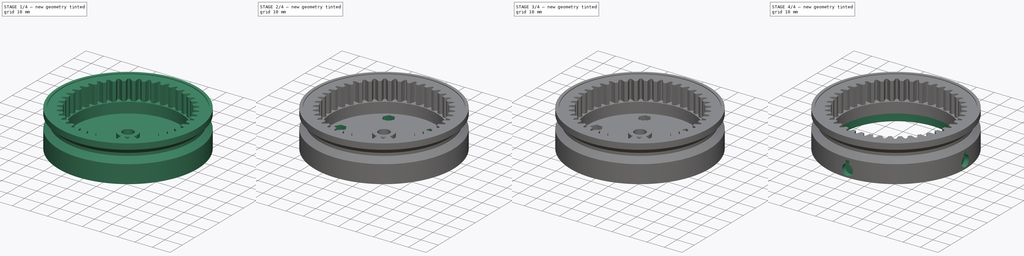
[diagram: build sequence overview — one tinted view per stage of 4, left to right]
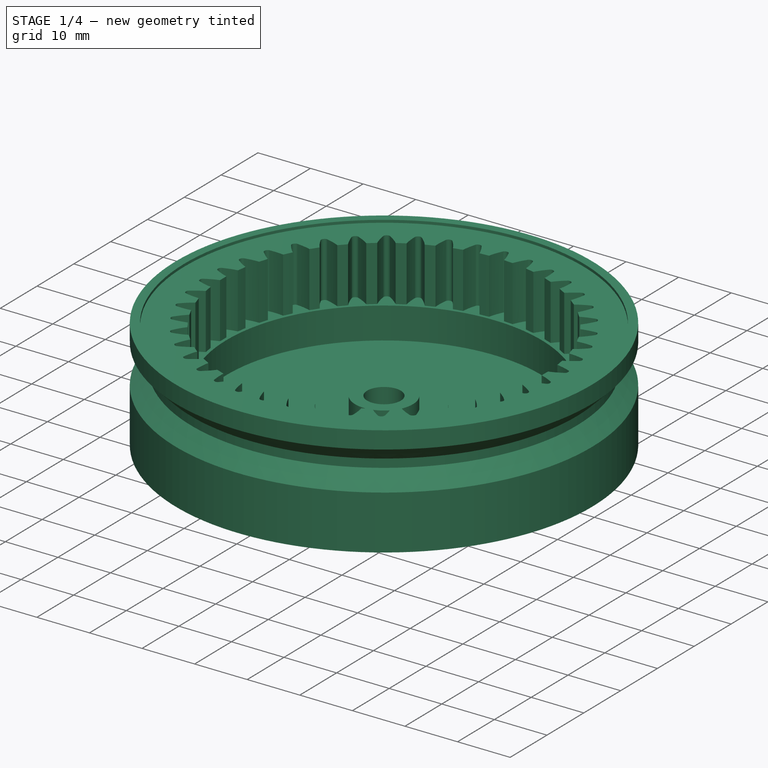
[diagram: stage 1 of 4 — iso view after this stage's code; geometry added in this stage tinted green]
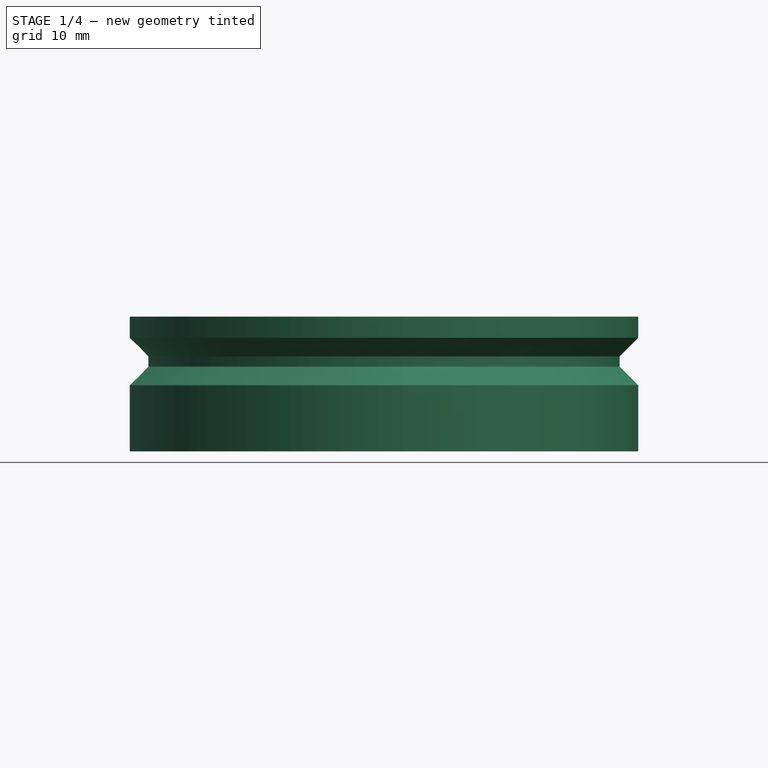
[diagram: stage 1 of 4 — front view after this stage's code; geometry added in this stage tinted green]
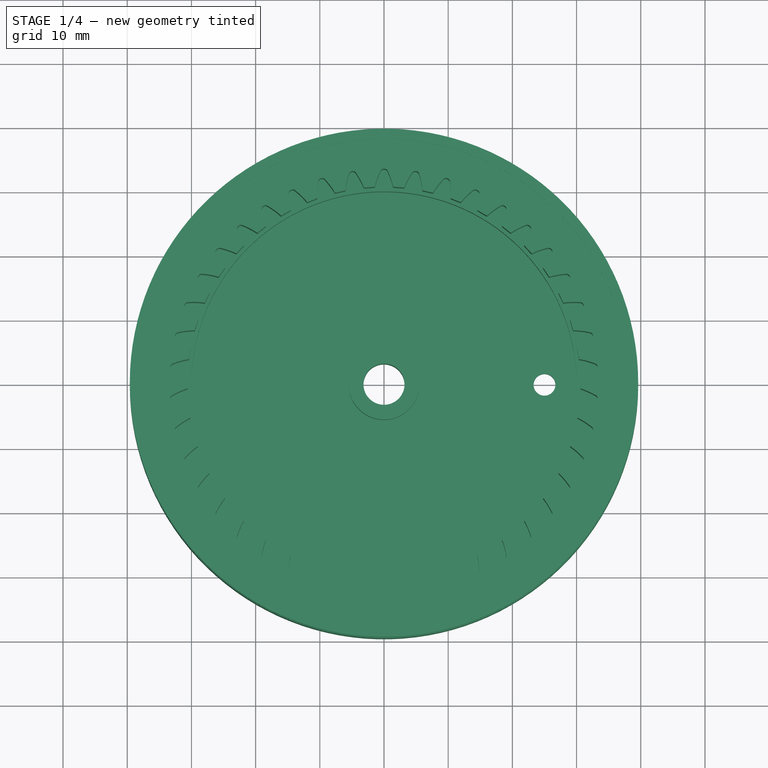
[diagram: stage 1 of 4 — top view after this stage's code; geometry added in this stage tinted green]
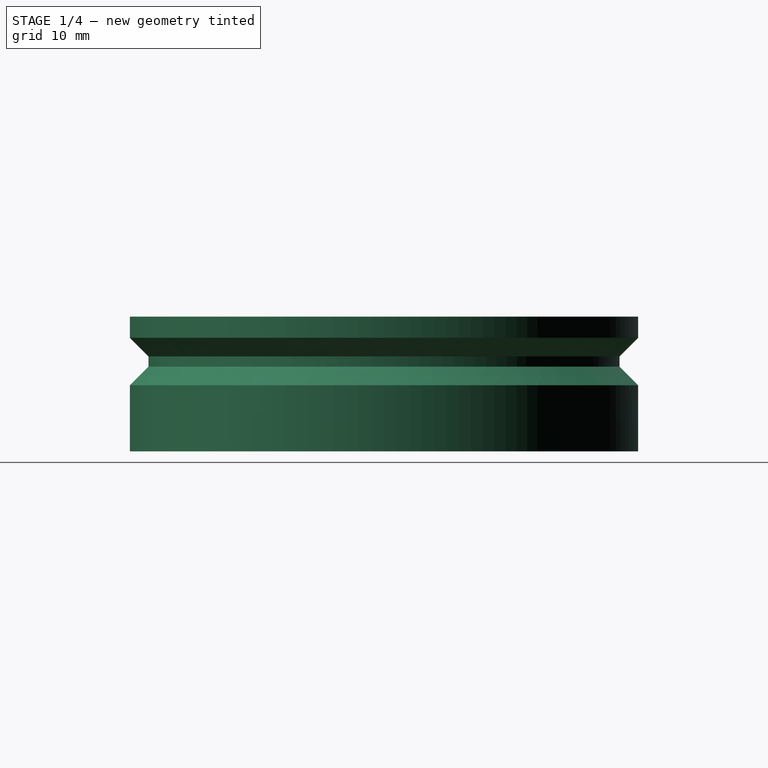
[diagram: stage 1 of 4 — right view after this stage's code; geometry added in this stage tinted green]
FCSTD DOCUMENT  (FreeCAD 0.16R6706 (Git))
Label: RingDriveV2
License: All rights reserved
LicenseURL: http://en.wikipedia.org/wiki/All_rights_reserved
objects: Sketcher::SketchObject×7, PartDesign::Pocket×5, PartDesign::PolarPattern×5, PartDesign::Revolution×1, Part::Part2DObjectPython×1, PartDesign::Pad×1, Part::Cut×1, PartDesign::Groove×1
note: 30 computed .brp shape members not serialized (recipe doc carries the construction recipe); baked Part::Feature solids carry a one-line shape summary decoded from their .brp

FEATURE [Sketcher::SketchObject] Sketch019
  Placement = pos=(0,0,0) rot=(1,0,0;1.5708rad)
  sketch-geometry (38):
    g0: LineSegment StartX=3.2 StartY=8.5 StartZ=0 EndX=3.2 EndY=0 EndZ=0
    g1: LineSegment StartX=3.2 StartY=0 StartZ=0 EndX=39.6 EndY=0 EndZ=0
    g2: LineSegment StartX=5.5 StartY=8.5 StartZ=0 EndX=5.5 EndY=4 EndZ=0
    g3: LineSegment StartX=5.5 StartY=4 StartZ=0 EndX=30 EndY=4 EndZ=0
    g4: LineSegment StartX=30 StartY=4 StartZ=0 EndX=30 EndY=20.5 EndZ=0
    g5: LineSegment StartX=38 StartY=21 StartZ=0 EndX=39.6 EndY=21 EndZ=0
    g6: LineSegment StartX=30 StartY=20.5 StartZ=0 EndX=38 EndY=20.5 EndZ=0
    g7: LineSegment StartX=38 StartY=20.5 StartZ=0 EndX=38 EndY=21 EndZ=0
    g8: LineSegment StartX=39.6 StartY=21 StartZ=0 EndX=39.6 EndY=17.7012 EndZ=0
    g9: LineSegment StartX=36.7 StartY=13.1988 StartZ=0 EndX=39.6 EndY=10.2988 EndZ=0
    g10: LineSegment StartX=39.6 StartY=10.2988 StartZ=0 EndX=39.6 EndY=0 EndZ=0
    g11: LineSegment [constr] StartX=39.6 StartY=17.7012 StartZ=0 EndX=39.6 EndY=10.2988 EndZ=0
    g12: LineSegment [constr] StartX=36.7 StartY=14 StartZ=0 EndX=40 EndY=14 EndZ=0
    g13: Circle [constr] CenterX=40 CenterY=14 CenterZ=0 NormalX=0 NormalY=0 NormalZ=1 Radius=2.9
    g14: LineSegment StartX=39.6 StartY=17.7012 StartZ=0 EndX=36.7 EndY=14.8012 EndZ=0
    g15: LineSegment StartX=36.7 StartY=14.8012 StartZ=0 EndX=36.7 EndY=13.1988 EndZ=0
    g16: GeomPoint [constr] X=37.1 Y=14 Z=0
    g17: LineSegment [constr] StartX=35 StartY=20.5 StartZ=0 EndX=35 EndY=4 EndZ=0
    g18: LineSegment [constr] StartX=30 StartY=4 StartZ=0 EndX=35 EndY=4 EndZ=0
    g19: LineSegment StartX=3.2 StartY=8.5 StartZ=0 EndX=5.5 EndY=8.5 EndZ=0
    g20: Circle CenterX=36.8887 CenterY=10.8887 CenterZ=0 NormalX=0 NormalY=0 NormalZ=1 Radius=0.15
    g21: Circle CenterX=36.8887 CenterY=17.1113 CenterZ=0 NormalX=0 NormalY=0 NormalZ=1 Radius=0.15
    g22: LineSegment [constr] StartX=37.9494 StartY=16.0506 StartZ=0 EndX=36.8887 EndY=17.1113 EndZ=0
    g23: LineSegment [constr] StartX=35 StartY=17.1113 StartZ=0 EndX=36.8887 EndY=17.1113 EndZ=0
    g24: LineSegment [constr] StartX=35 StartY=10.8887 StartZ=0 EndX=36.8887 EndY=10.8887 EndZ=0
    g25: LineSegment [constr] StartX=36.8887 StartY=10.8887 StartZ=0 EndX=37.9494 EndY=11.9494 EndZ=0
    g26: LineSegment [constr] StartX=36.5 StartY=20.5 StartZ=0 EndX=36.5 EndY=0 EndZ=0
    g27: Circle CenterX=36.5 CenterY=19 CenterZ=0 NormalX=0 NormalY=0 NormalZ=1 Radius=0.15
    g28: Circle [constr] CenterX=36.5 CenterY=9.5 CenterZ=0 NormalX=0 NormalY=0 NormalZ=1 Radius=0.15
    g29: Circle CenterX=35.5787 CenterY=15.8012 CenterZ=0 NormalX=0 NormalY=0 NormalZ=1 Radius=0.15
    g30: Circle CenterX=35.5787 CenterY=12.1988 CenterZ=0 NormalX=0 NormalY=0 NormalZ=1 Radius=0.15
    g31: Circle CenterX=35.5787 CenterY=14 CenterZ=0 NormalX=0 NormalY=0 NormalZ=1 Radius=0.15
    g32: LineSegment [constr] StartX=35 StartY=14 StartZ=0 EndX=36.7 EndY=14 EndZ=0
    g33: LineSegment [constr] StartX=35.5787 StartY=15.8012 StartZ=0 EndX=38.0908 EndY=18.3134 EndZ=0
    g34: Circle CenterX=38.0908 CenterY=18.3134 CenterZ=0 NormalX=0 NormalY=0 NormalZ=1 Radius=0.15
    g35: LineSegment [constr] StartX=35.5787 StartY=12.1988 StartZ=0 EndX=38.0908 EndY=9.68665 EndZ=0
    g36: Circle [constr] CenterX=38.0908 CenterY=9.68665 CenterZ=0 NormalX=0 NormalY=0 NormalZ=1 Radius=0.15
    g37: LineSegment [constr] StartX=35.5787 StartY=15.8012 StartZ=0 EndX=35.5787 EndY=12.1988 EndZ=0
  constraints (112):
    c: Vertical(g0)
    c: Coincident(g1,g0)
    c: Horizontal(g1)
    c: PointOnObject(g0,g-1)
    c: Vertical(g2)
    c: Coincident(g3,g2)
    c: Horizontal(g3)
    c: Vertical(g4)
    c: Horizontal(g5)
    c: Coincident(g4,g3)
    c: DistanceX(g-1,g3) = 30
    c: DistanceY(g2,g0) = -4
    c: Coincident(g6,g4)
    c: Horizontal(g6)
    c: Coincident(g7,g5)
    c: Vertical(g7)
    c: Coincident(g7,g6)
    c: DistanceY(g6,g5) = 0.5
    c: DistanceX(g5,g5) = 1.6
    c: DistanceY(g3,g5) = 17
    c: DistanceX(g-1,g0) = 3.2
    c: DistanceY(g0,g0) = 8.5
    c: DistanceX(g-1,g1) = 39.6
    c: Coincident(g5,g8)
    c: Vertical(g8)
    c: Coincident(g9,g10)
    c: Vertical(g10)
    c: Coincident(g1,g10)
    c: Vertical(g11)
    c: Coincident(g11,g8)
    c: Coincident(g9,g11)
    c: Horizontal(g12)
    c: Coincident(g8,g14)
    c: Coincident(g14,g15)
    c: Coincident(g15,g9)
    c: Vertical(g15)
    c: Angle(g9,g14) = 1.5708
    c: Symmetric(g14,g9,g12)
    c: Tangent(g9,g13)
    c: DistanceX(g9,g13) = 0.4
    c: Radius(g13) = 2.9
    c: PointOnObject(g16,g13)
    c: PointOnObject(g16,g12)
    c: DistanceX(g9,g16) = 0.4
    c: PointOnObject(g17,g6)
    c: Vertical(g17)
    c: Coincident(g18,g3)
    c: Coincident(g18,g17)
    c: Horizontal(g18)
    c: DistanceX(g-1,g13) = 40
    c: DistanceY(g13,g5) = 7
    c: Coincident(g13,g12)
    c: DistanceX(g-1,g6) = 38
    c: DistanceX(g-1,g17) = 35
    c: Coincident(g19,g0)
    c: Horizontal(g19)
    c: DistanceX(g-1,g19) = 5.5
    c: Coincident(g2,g19)
    c: Coincident(g22,g21)
    c: PointOnObject(g23,g17)
    c: Coincident(g23,g21)
    c: Horizontal(g23)
    c: Angle(g22,g14) = 1.5708
    c: PointOnObject(g22,g14)
    c: PointOnObject(g22,g13)
    c: Tangent(g13,g14)
    c: Radius(g21) = 0.15
    c: PointOnObject(g24,g17)
    c: Coincident(g24,g20)
    c: Horizontal(g24)
    c: Coincident(g25,g20)
    c: PointOnObject(g25,g9)
    c: PointOnObject(g25,g13)
    c: Angle(g25,g9) = 1.5708
    c: Radius(g20) = 0.15
    c: Distance(g20,g25) = 1.5
    c: Vertical(g26)
    c: Radius(g27) = 0.15
    c: PointOnObject(g27,g26)
    c: PointOnObject(g26,g1)
    c: DistanceX(g17,g26) = 1.5
    c: DistanceY(g26,g27) = 19
    c: PointOnObject(g26,g6)
    c: PointOnObject(g28,g26)
    c: Radius(g28) = 0.15
    c: DistanceY(g26,g28) = 9.5
    c: Radius(g30) = 0.15
    c: Radius(g29) = 0.15
    c: DistanceY(g14,g29) = 1
    c: DistanceY(g30,g9) = 1
    c: Radius(g31) = 0.15
    c: PointOnObject(g32,g17)
    c: Coincident(g32,g12)
    c: Horizontal(g32)
    c: PointOnObject(g31,g32)
    c: Distance(g22,g21) = 1.5
    c: Distance(g20,g25) = 1.5
    c: Coincident(g33,g29)
    c: Parallel(g33,g14)
    c: Coincident(g34,g33)
    c: Radius(g34) = 0.15
    c: PointOnObject(g21,g33)
    c: Distance(g21,g33) = 1.7
    c: Coincident(g35,g30)
    c: PointOnObject(g20,g35)
    c: Parallel(g35,g9)
    c: Coincident(g36,g35)
    c: Radius(g36) = 0.15
    c: Distance(g20,g35) = 1.7
    c: Coincident(g37,g29)
    c: Coincident(g37,g30)
    c: PointOnObject(g31,g37)
FEATURE [PartDesign::Revolution] Revolution001
  Angle = 360
  Axis = (0,0,1)
  Base = (0,0,0)
  Placement = pos=(0,0,0) rot=(1,0,0;1.5708rad)
  ReferenceAxis = -> Sketch019 [V_Axis]
  Reversed = true
  Sketch = -> Sketch019
FEATURE [Part::Part2DObjectPython] InvoluteGear005  # Draft 2D object (typed FeaturePython)
  ExternalGear = false
  HighPrecision = true
  Modules = 1.5
  NumberOfTeeth = 42
  Placement = pos=(0,0,10) rot=(0,0,1;0rad)
  PressureAngle = 20
FEATURE [PartDesign::Pad] Pad011
  Length = 15
  Length2 = 100
  Placement = pos=(0,0,10) rot=(0,0,1;0rad)
  Sketch = -> InvoluteGear005
  Type = 0
FEATURE [Part::Cut] Cut001
  Base = -> Revolution001
  Tool = -> Pad011
FEATURE [Sketcher::SketchObject] Sketch020  label="MountingHole"
  Placement = pos=(0,0,4) rot=(0,0,1;0rad)
  Support = -> Cut001 [Face6]
  sketch-geometry (2):
    g0: Circle CenterX=25 CenterY=0 CenterZ=0 NormalX=0 NormalY=0 NormalZ=1 Radius=1.7
    g1: Circle [constr] CenterX=0 CenterY=0 CenterZ=0 NormalX=0 NormalY=0 NormalZ=1 Radius=25
  constraints (5):
    c: PointOnObject(g0,g1)
    c: Radius(g0) = 1.7
    c: PointOnObject(g0,g-1)
    c: Radius(g1) = 25
    c: Coincident(g1,g-1)
FEATURE [PartDesign::Pocket] Pocket012
  Length = 5
  Sketch = -> Sketch020
  Type = 1
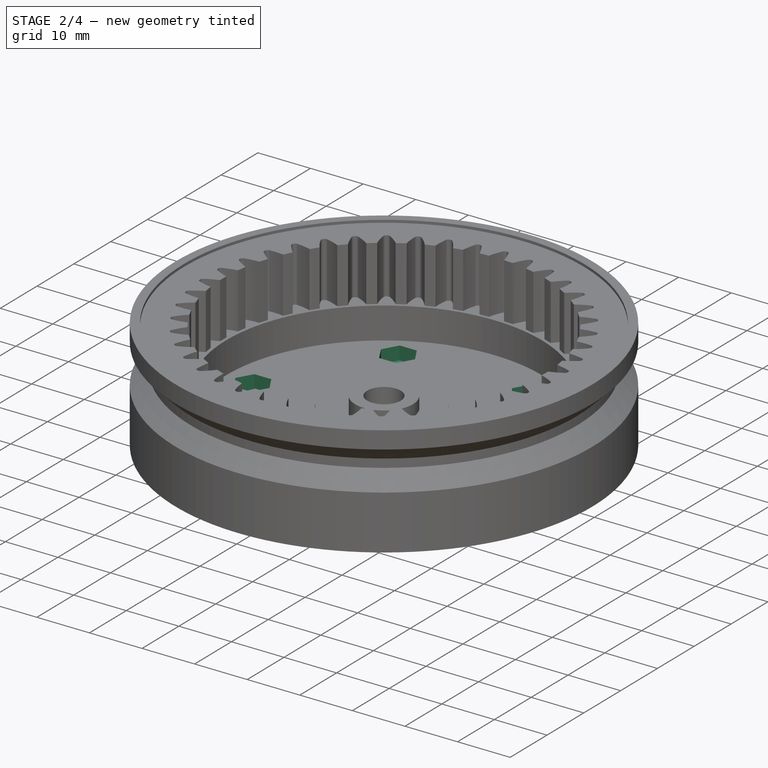
[diagram: stage 2 of 4 — iso view after this stage's code; geometry added in this stage tinted green]
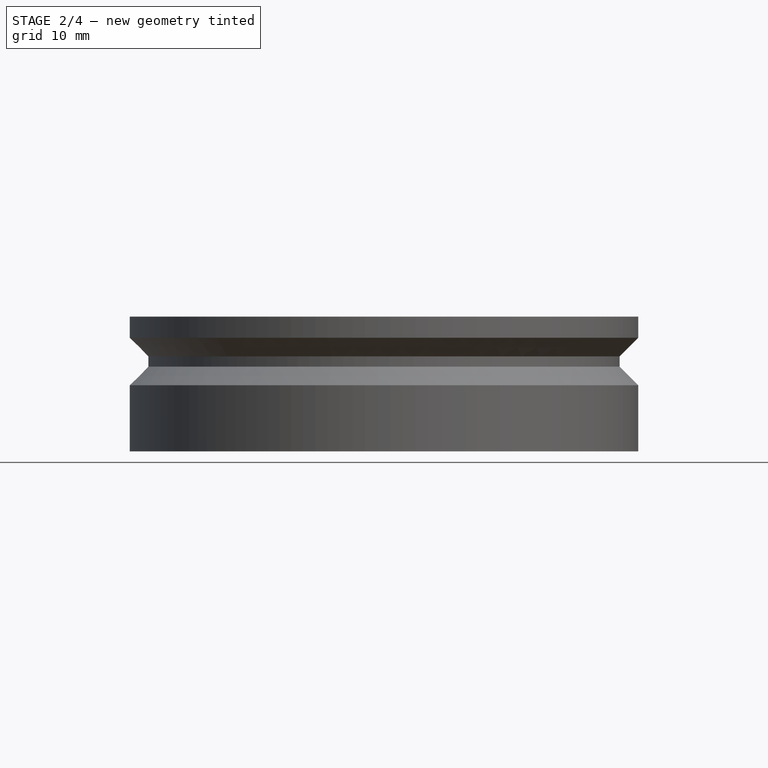
[diagram: stage 2 of 4 — front view after this stage's code; geometry added in this stage tinted green]
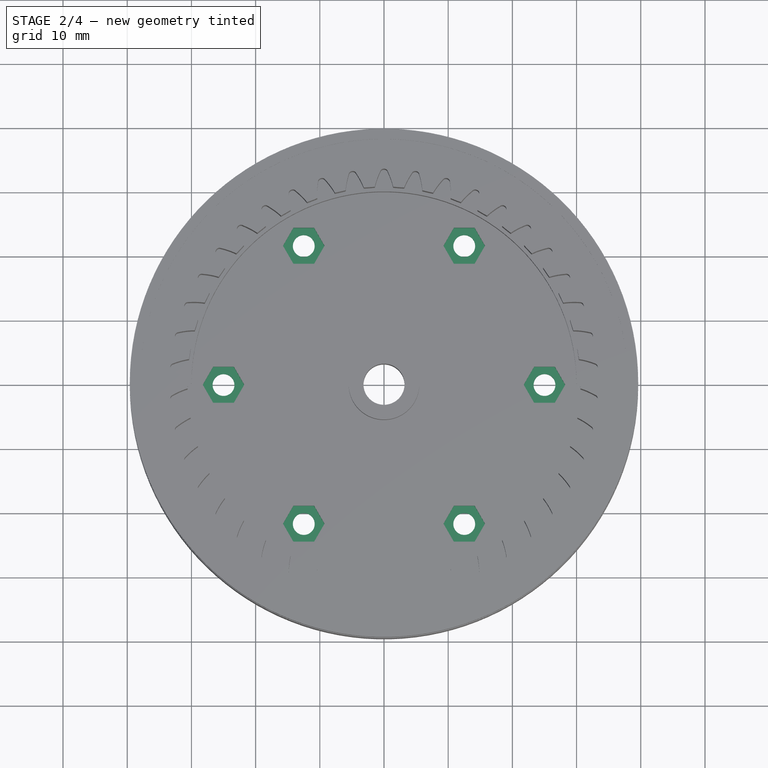
[diagram: stage 2 of 4 — top view after this stage's code; geometry added in this stage tinted green]
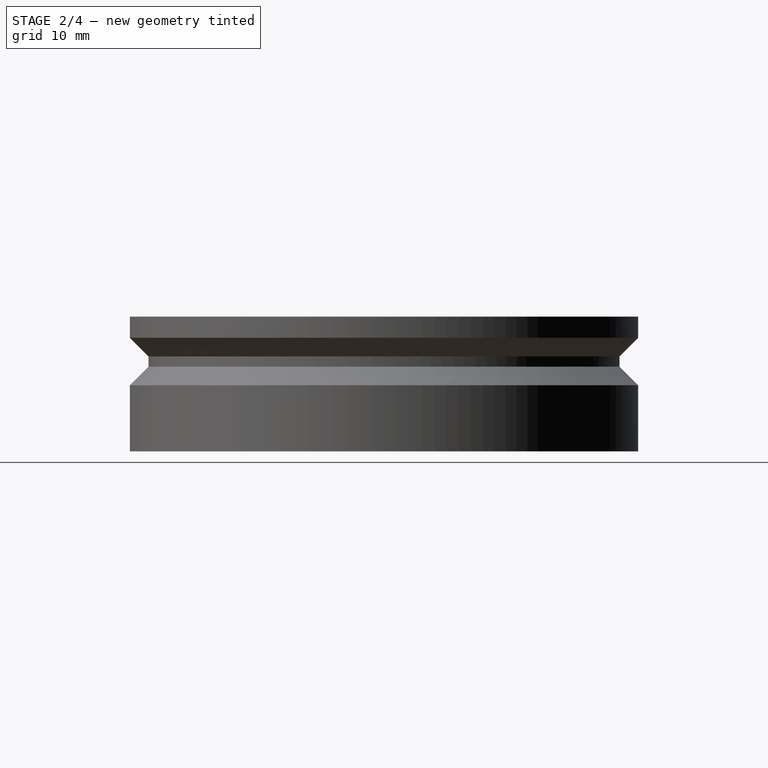
[diagram: stage 2 of 4 — right view after this stage's code; geometry added in this stage tinted green]
FEATURE [PartDesign::PolarPattern] PolarPattern001
  Angle = 360
  Axis = -> Sketch020 [N_Axis]
  Occurrences = 6
  Originals = -> [Pocket012]
FEATURE [Sketcher::SketchObject] Sketch021  label="NutOutline"
  Placement = pos=(0,0,4) rot=(0,0,1;0rad)
  Support = -> PolarPattern001 [Face12]
  sketch-geometry (8):
    g0: Circle [constr] CenterX=0 CenterY=0 CenterZ=0 NormalX=0 NormalY=0 NormalZ=1 Radius=25
    g1: LineSegment StartX=26.6166 StartY=2.8 StartZ=0 EndX=23.3834 EndY=2.8 EndZ=0
    g2: LineSegment StartX=23.3834 StartY=2.8 StartZ=0 EndX=21.7668 EndY=0 EndZ=0
    g3: LineSegment StartX=21.7668 StartY=0 StartZ=0 EndX=23.3834 EndY=-2.8 EndZ=0
    g4: LineSegment StartX=23.3834 StartY=-2.8 StartZ=0 EndX=26.6166 EndY=-2.8 EndZ=0
    g5: LineSegment StartX=26.6166 StartY=-2.8 StartZ=0 EndX=28.2332 EndY=0 EndZ=0
    g6: LineSegment StartX=28.2332 StartY=0 StartZ=0 EndX=26.6166 EndY=2.8 EndZ=0
    g7: Circle [constr] CenterX=25 CenterY=0 CenterZ=0 NormalX=0 NormalY=0 NormalZ=1 Radius=3.23316
  constraints (19):
    c: PointOnObject(g7,g0)
    c: Coincident(g0,g-1)
    c: Coincident(g1,g2)
    c: Coincident(g2,g3)
    c: Coincident(g3,g4)
    c: Coincident(g4,g5)
    c: Coincident(g5,g6)
    c: Coincident(g6,g1)
    c: Equal(g1, g2-g6) x5
    c: PointOnObject(g1,g7)
    c: PointOnObject(g2,g7)
    c: PointOnObject(g3,g7)
    c: PointOnObject(g4,g7)
    c: PointOnObject(g5,g7)
    c: PointOnObject(g6,g7)
    c: Horizontal(g4)
    c: PointOnObject(g7,g-1)
    c: Radius(g0) = 25
    c: DistanceY(g4,g1) = 5.6
FEATURE [PartDesign::Pocket] Pocket013
  Length = 2.55
  Sketch = -> Sketch021
  Type = 0
FEATURE [PartDesign::PolarPattern] PolarPattern  label="WithBoltHoles"
  Angle = 360
  Axis = -> Sketch021 [N_Axis]
  Occurrences = 6
  Originals = -> [Pocket013]
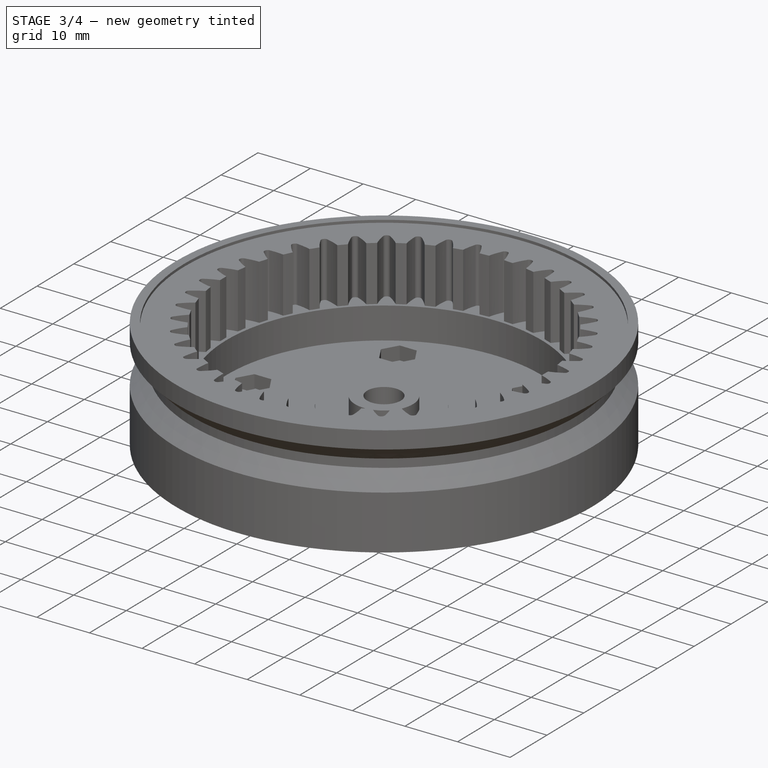
[diagram: stage 3 of 4 — iso view after this stage's code; geometry added in this stage tinted green]
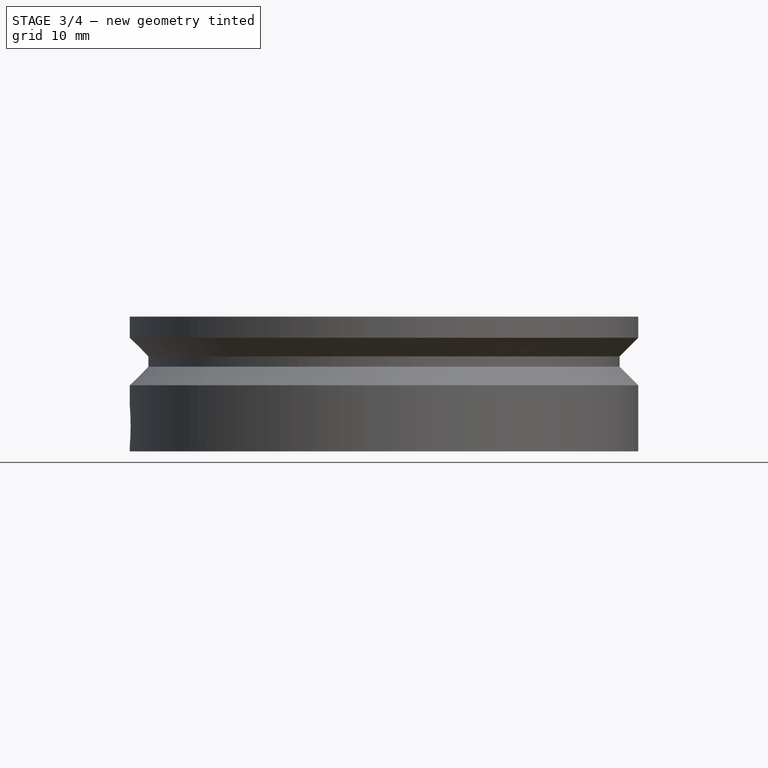
[diagram: stage 3 of 4 — front view after this stage's code; geometry added in this stage tinted green]
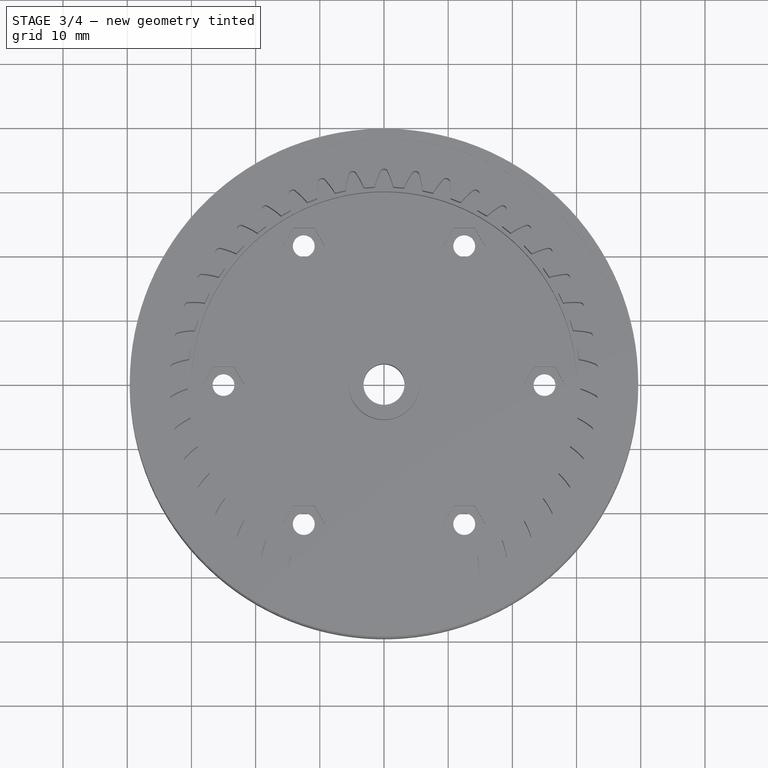
[diagram: stage 3 of 4 — top view after this stage's code; geometry added in this stage tinted green]
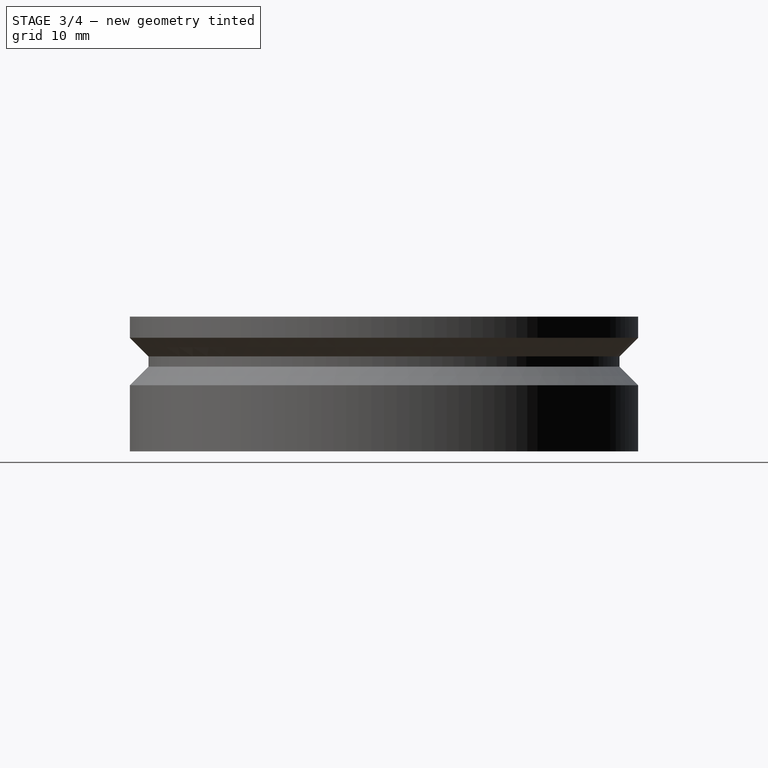
[diagram: stage 3 of 4 — right view after this stage's code; geometry added in this stage tinted green]
FEATURE [Sketcher::SketchObject] Sketch
  Placement = pos=(0,0,8.5) rot=(0,0,1;0rad)
  Support = -> PolarPattern [Face2]
  sketch-geometry (5):
    g0: Circle CenterX=34.5 CenterY=0 CenterZ=0 NormalX=0 NormalY=0 NormalZ=1 Radius=1.5
    g1: Circle [constr] CenterX=0 CenterY=0 CenterZ=0 NormalX=0 NormalY=0 NormalZ=1 Radius=38.6
    g2: GeomPoint [constr] X=38.6 Y=0 Z=0
    g3: GeomPoint [constr] X=36 Y=0 Z=0
    g4: Circle [constr] CenterX=0 CenterY=0 CenterZ=0 NormalX=0 NormalY=0 NormalZ=1 Radius=30
  constraints (12):
    c: PointOnObject(g0,g-1)
    c: Radius(g0) = 1.5
    c: DistanceX(g-1,g0) = 34.5
    c: Coincident(g1,g-1)
    c: Radius(g1) = 38.6
    c: PointOnObject(g2,g-1)
    c: PointOnObject(g2,g1)
    c: PointOnObject(g3,g0)
    c: PointOnObject(g3,g-1)
    c: DistanceX(g3,g2) = 2.6
    c: Coincident(g4,g-1)
    c: Radius(g4) = 30
FEATURE [PartDesign::Pocket] Pocket  label="OutScrewHoles"
  Length = 9
  Sketch = -> Sketch
  Type = 0
FEATURE [PartDesign::PolarPattern] PolarPattern002  label="WithOuterScrewHoles"
  Angle = 360
  Axis = -> Sketch [N_Axis]
  Occurrences = 12
  Originals = -> [Pocket]
FEATURE [Sketcher::SketchObject] Sketch022  label="MagnetHoles"
  Placement = pos=(0,0,4) rot=(0,0,1;0rad)
  Support = -> PolarPattern002 [Face24]
  sketch-geometry (5):
    g0: LineSegment StartX=-39.6 StartY=3.1 StartZ=0 EndX=-37 EndY=3.1 EndZ=0
    g1: LineSegment StartX=-37 StartY=3.1 StartZ=0 EndX=-37 EndY=0 EndZ=0
    g2: LineSegment StartX=-37 StartY=0 StartZ=0 EndX=-39.6 EndY=0 EndZ=0
    g3: LineSegment StartX=-39.6 StartY=0 StartZ=0 EndX=-39.6 EndY=3.1 EndZ=0
    g4: GeomPoint [constr] X=-37 Y=1.55 Z=0
  constraints (14):
    c: Coincident(g0,g1)
    c: Coincident(g1,g2)
    c: Coincident(g2,g3)
    c: Coincident(g3,g0)
    c: Horizontal(g0)
    c: Horizontal(g2)
    c: Vertical(g1)
    c: Vertical(g3)
    c: DistanceX(g2,g-1) = 39.6
    c: DistanceX(g0,g0) = 2.6
    c: DistanceY(g1,g0) = 3.1
    c: PointOnObject(g4,g1)
    c: Symmetric(g1,g0,g4)
    c: PointOnObject(g2,g-1)
FEATURE [PartDesign::Groove] Groove
  Angle = 360
  Axis = (1,0,0)
  Base = (0,0,4)
  ReferenceAxis = -> Sketch022 [H_Axis]
  Reversed = true
  Sketch = -> Sketch022
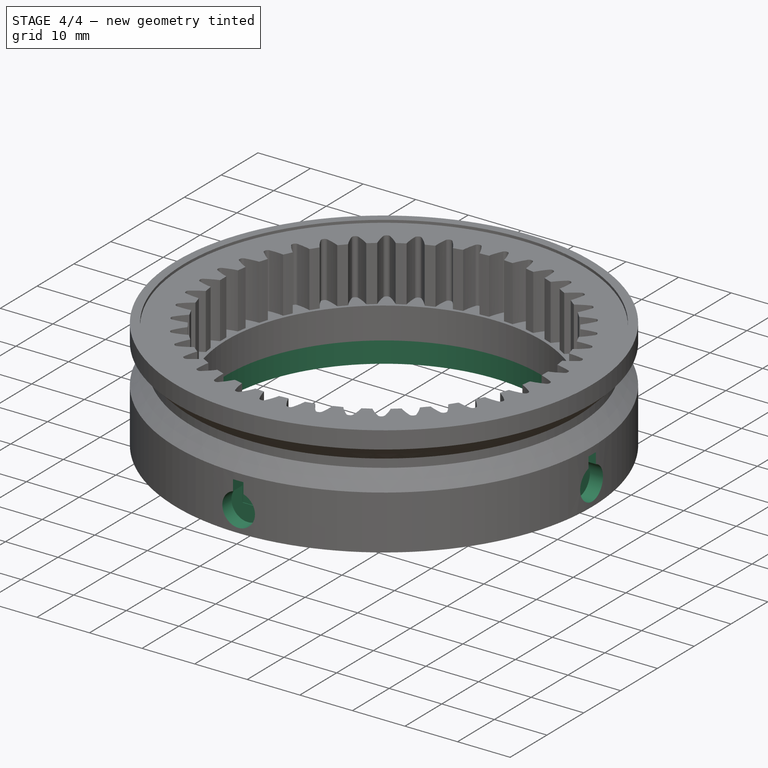
[diagram: stage 4 of 4 — iso view after this stage's code; geometry added in this stage tinted green]
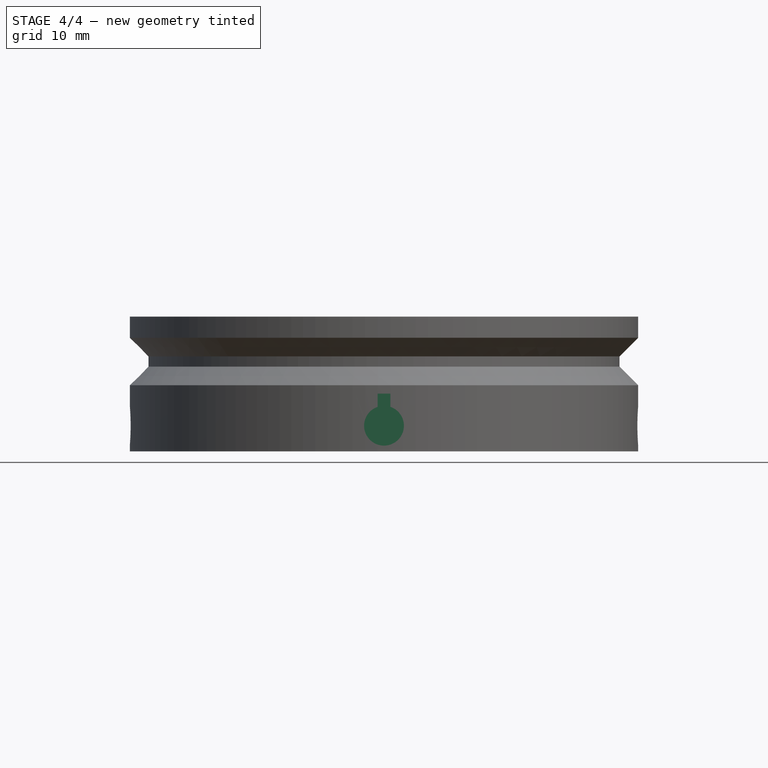
[diagram: stage 4 of 4 — front view after this stage's code; geometry added in this stage tinted green]
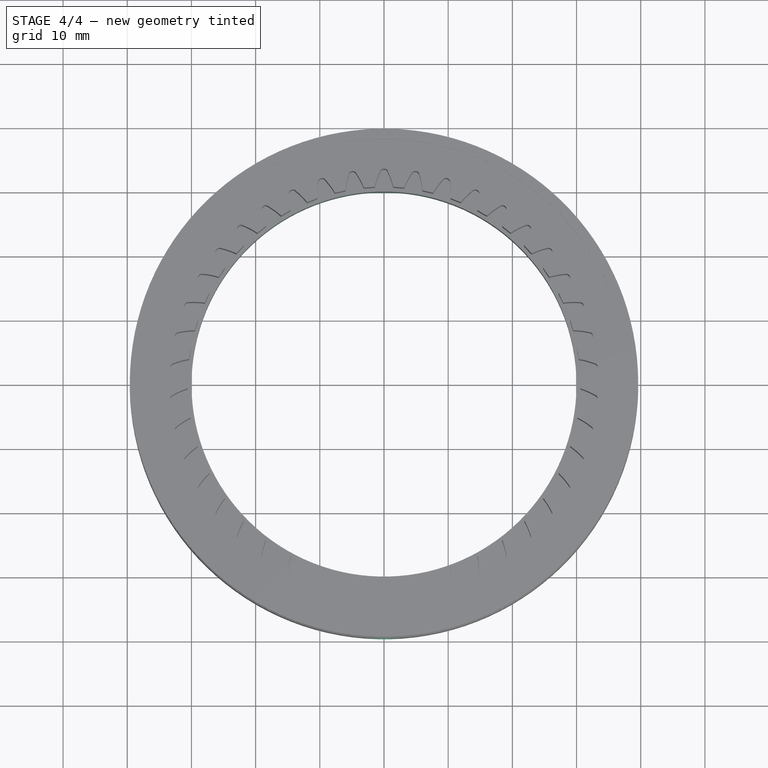
[diagram: stage 4 of 4 — top view after this stage's code; geometry added in this stage tinted green]
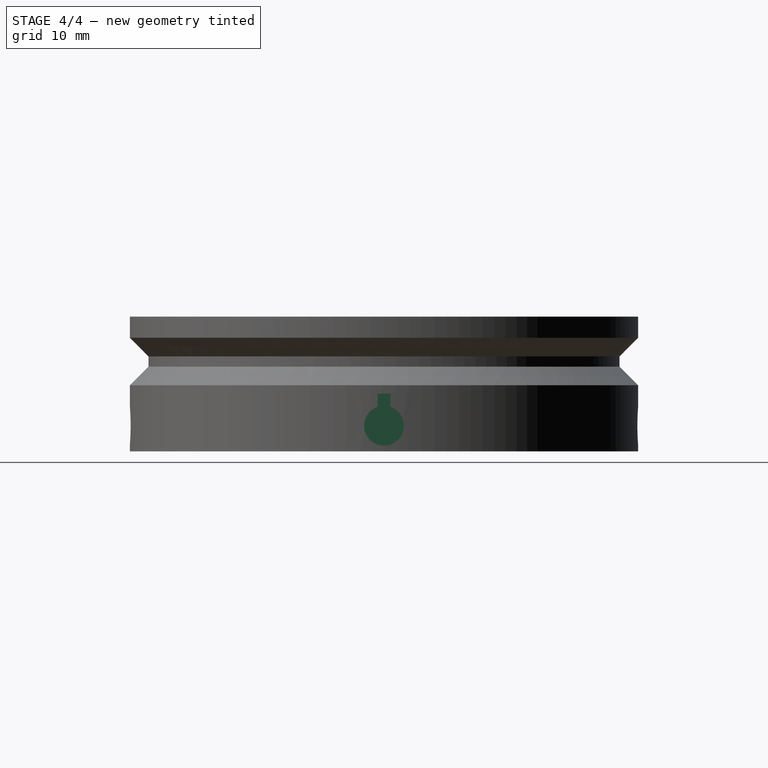
[diagram: stage 4 of 4 — right view after this stage's code; geometry added in this stage tinted green]
FEATURE [PartDesign::PolarPattern] PolarPattern003
  Angle = 360
  Axis = -> Sketch022 [N_Axis]
  Occurrences = 4
  Originals = -> [Groove]
FEATURE [Sketcher::SketchObject] Sketch023  label="SlotToRemoveMagnet"
  Placement = pos=(0,0,4) rot=(0,0,1;0rad)
  Support = -> PolarPattern003 [Face24]
  sketch-geometry (5):
    g0: LineSegment StartX=-1 StartY=41.9 StartZ=0 EndX=1 EndY=41.9 EndZ=0
    g1: LineSegment StartX=1 StartY=41.9 StartZ=0 EndX=1 EndY=36.9 EndZ=0
    g2: LineSegment StartX=1 StartY=36.9 StartZ=0 EndX=-1 EndY=36.9 EndZ=0
    g3: LineSegment StartX=-1 StartY=36.9 StartZ=0 EndX=-1 EndY=41.9 EndZ=0
    g4: GeomPoint [constr] X=0 Y=39.4 Z=0
  constraints (13):
    c: Coincident(g0,g1)
    c: Coincident(g1,g2)
    c: Coincident(g2,g3)
    c: Coincident(g3,g0)
    c: Horizontal(g0)
    c: Horizontal(g2)
    c: Vertical(g1)
    c: Vertical(g3)
    c: Symmetric(g0,g2,g4)
    c: PointOnObject(g4,g-2)
    c: DistanceY(g-1,g4) = 39.4
    c: DistanceY(g1,g0) = 5
    c: DistanceX(g0,g0) = 2
FEATURE [PartDesign::Pocket] Pocket014
  Length = 5
  Reversed = true
  Sketch = -> Sketch023
  Type = 0
FEATURE [PartDesign::PolarPattern] PolarPattern004
  Angle = 360
  Axis = -> Sketch023 [N_Axis]
  Occurrences = 4
  Originals = -> [Pocket014]
FEATURE [Sketcher::SketchObject] Sketch024
  Placement = pos=(0,0,0) rot=(1,0,0;3.14159rad)
  Support = -> PolarPattern004 [Face3]
  sketch-geometry (1):
    g0: Circle CenterX=0 CenterY=0 CenterZ=0 NormalX=0 NormalY=0 NormalZ=1 Radius=30
  constraints (2):
    c: Coincident(g0,g-1)
    c: Radius(g0) = 30
FEATURE [PartDesign::Pocket] Pocket015
  Length = 5
  Sketch = -> Sketch024
  Type = 1
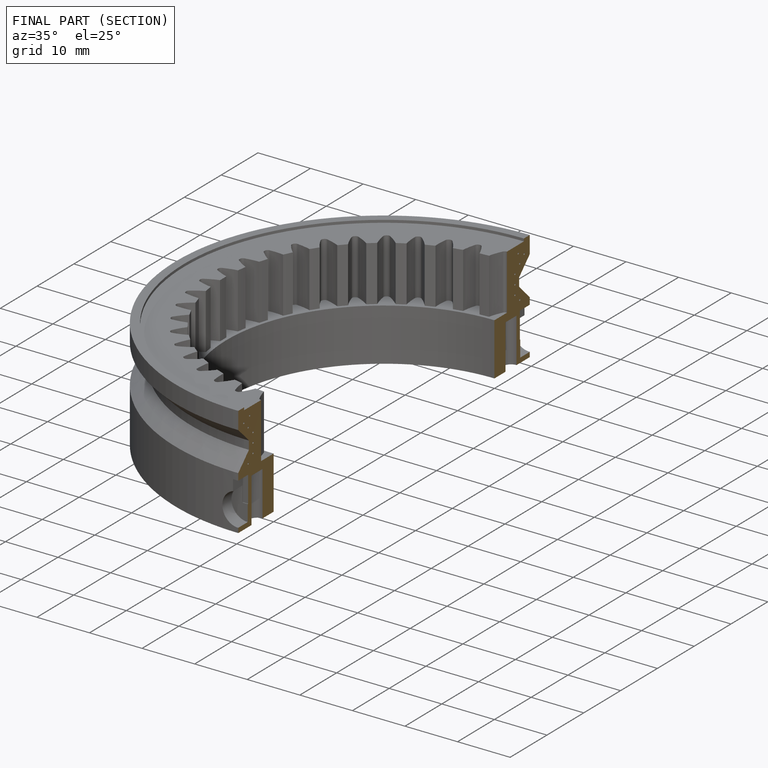
[diagram: finished part — half-section view (interior)]
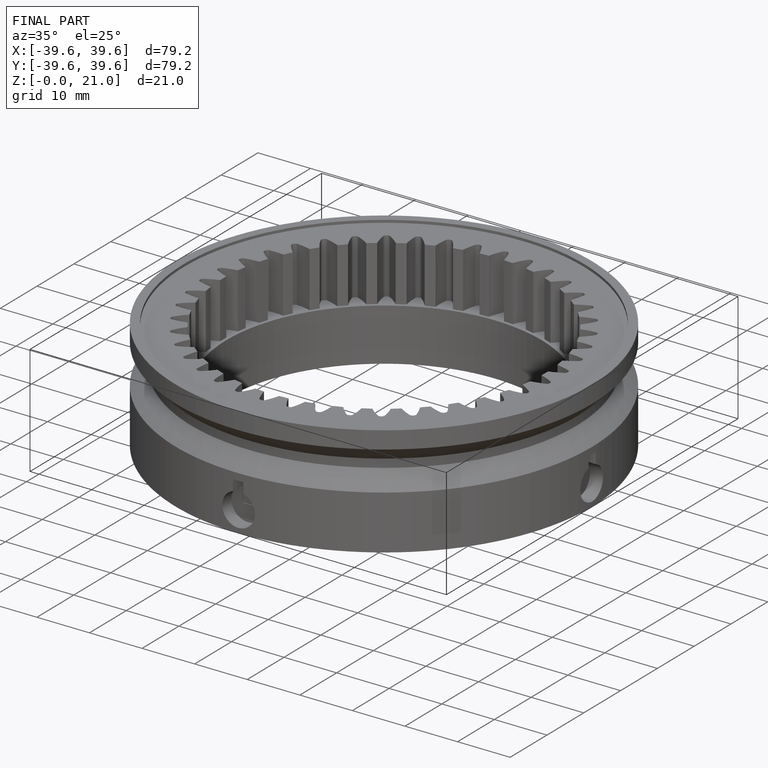
[diagram: finished part — iso view with bounding-box wireframe]
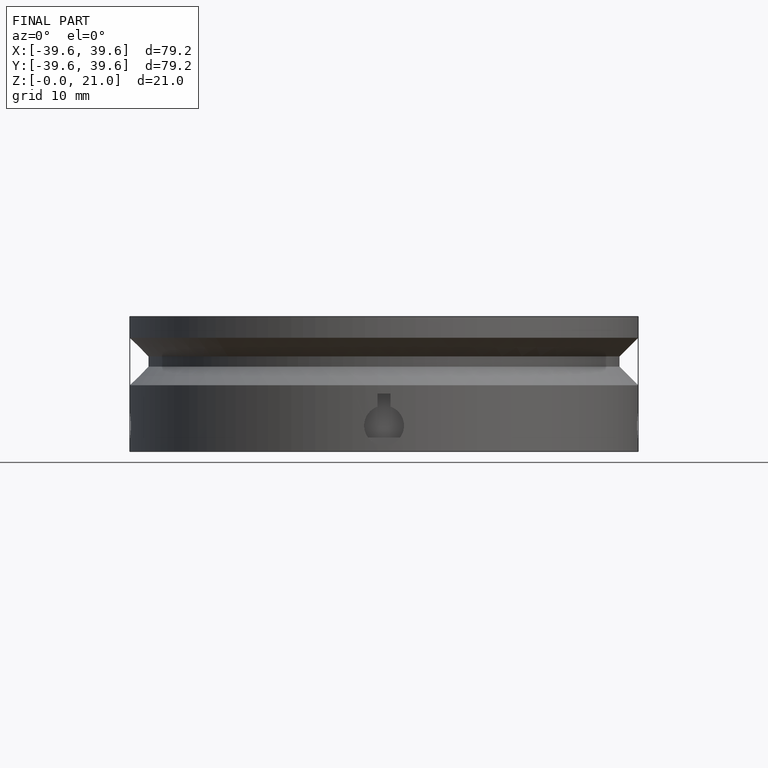
[diagram: finished part — front view with bounding-box wireframe]
